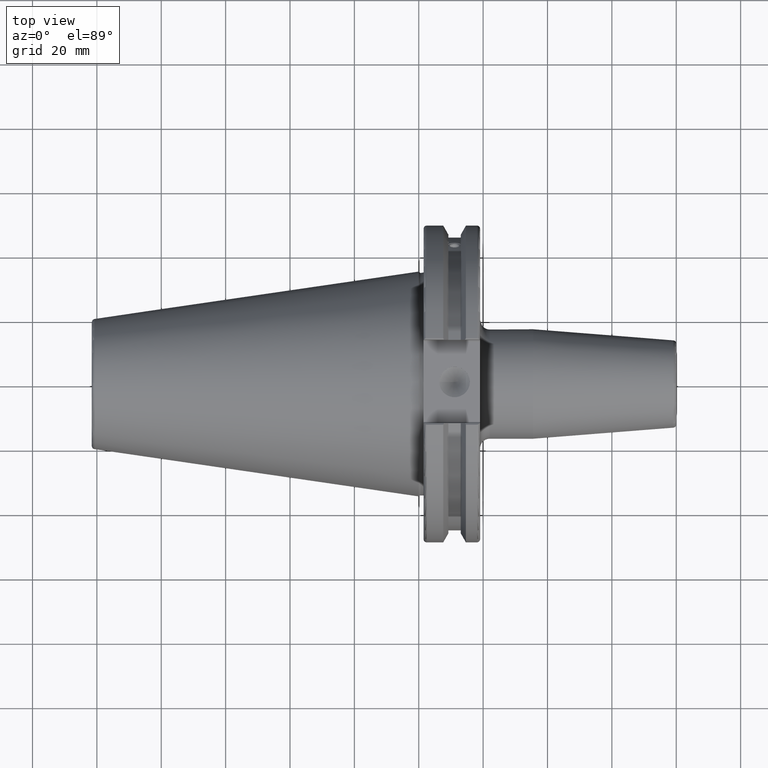
[diagram: clean part render]
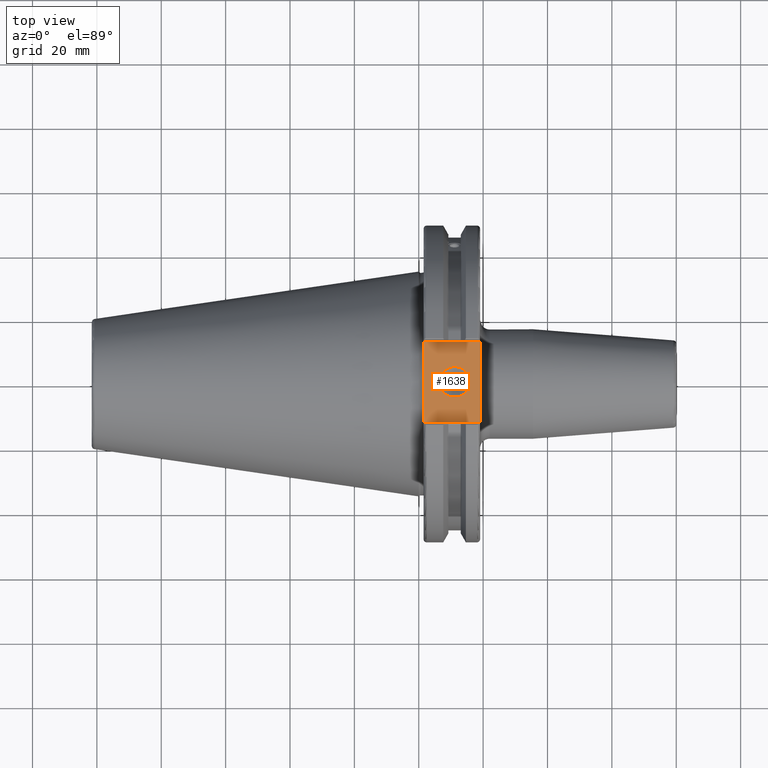
[diagram: same view with one face highlighted and labeled with its STEP entity id]
A machine part, top view. The second image highlights one B-rep face of the part: STEP entity #1638.
In plain terms, the highlighted planar face has unit normal (0, 0, 1).
Its self-contained STEP definition (entity closure, byte-faithful):
#66=PLANE('',#1828);
#97=FACE_BOUND('',#362,.T.);
#252=FACE_OUTER_BOUND('',#361,.T.);
#361=EDGE_LOOP('',(#1487,#1488,#1489,#1490));
#362=EDGE_LOOP('',(#1491));
#389=LINE('',#2463,#487);
#445=LINE('',#3157,#543);
#457=LINE('',#3202,#555);
#459=LINE('',#3205,#557);
#487=VECTOR('',#1944,10.);
#543=VECTOR('',#2158,10.);
#555=VECTOR('',#2200,10.);
#557=VECTOR('',#2204,10.);
#640=CIRCLE('',#1820,4.7625);
#684=VERTEX_POINT('',#2460);
#685=VERTEX_POINT('',#2462);
#789=VERTEX_POINT('',#3154);
#790=VERTEX_POINT('',#3156);
#810=VERTEX_POINT('',#3241);
#856=EDGE_CURVE('',#684,#685,#389,.T.);
#1001=EDGE_CURVE('',#789,#790,#445,.T.);
#1022=EDGE_CURVE('',#685,#789,#457,.T.);
#1024=EDGE_CURVE('',#790,#684,#459,.T.);
#1039=EDGE_CURVE('',#810,#810,#640,.T.);
#1487=ORIENTED_EDGE('',*,*,#1022,.F.);
#1488=ORIENTED_EDGE('',*,*,#856,.F.);
#1489=ORIENTED_EDGE('',*,*,#1024,.F.);
#1490=ORIENTED_EDGE('',*,*,#1001,.F.);
#1491=ORIENTED_EDGE('',*,*,#1039,.T.);
#1638=ADVANCED_FACE('',(#252,#97),#66,.T.);
#1820=AXIS2_PLACEMENT_3D('',#3242,#2239,#2240);
#1828=AXIS2_PLACEMENT_3D('',#3251,#2256,#2257);
#1944=DIRECTION('',(0.,-1.,0.));
#2158=DIRECTION('',(0.,1.,0.));
#2200=DIRECTION('',(-1.,1.19700595646917E-16,0.));
#2204=DIRECTION('',(1.,0.,0.));
#2239=DIRECTION('center_axis',(0.,0.,-1.));
#2240=DIRECTION('ref_axis',(1.,0.,0.));
#2256=DIRECTION('center_axis',(0.,0.,1.));
#2257=DIRECTION('ref_axis',(1.,0.,0.));
#2460=CARTESIAN_POINT('',(19.05,12.45,37.719));
#2462=CARTESIAN_POINT('',(19.05,-12.45,37.719));
#2463=CARTESIAN_POINT('',(19.05,0.,37.719));
#3154=CARTESIAN_POINT('',(1.5,-12.45,37.719));
#3156=CARTESIAN_POINT('',(1.5,12.45,37.719));
#3157=CARTESIAN_POINT('',(1.5,24.60625,37.719));
#3202=CARTESIAN_POINT('',(9.375,-12.45,37.719));
#3205=CARTESIAN_POINT('',(18.65,12.45,37.719));
#3241=CARTESIAN_POINT('',(6.36449999999999,-5.83238038093927E-16,37.719));
#3242=CARTESIAN_POINT('Origin',(11.127,0.,37.719));
#3251=CARTESIAN_POINT('Origin',(17.25,0.,37.719));